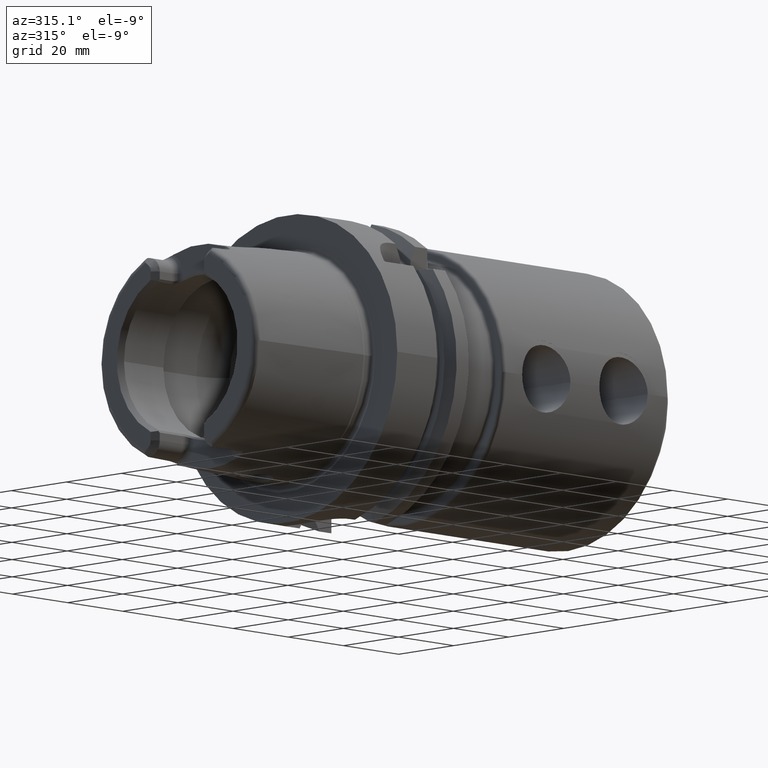
[diagram: clean part render]
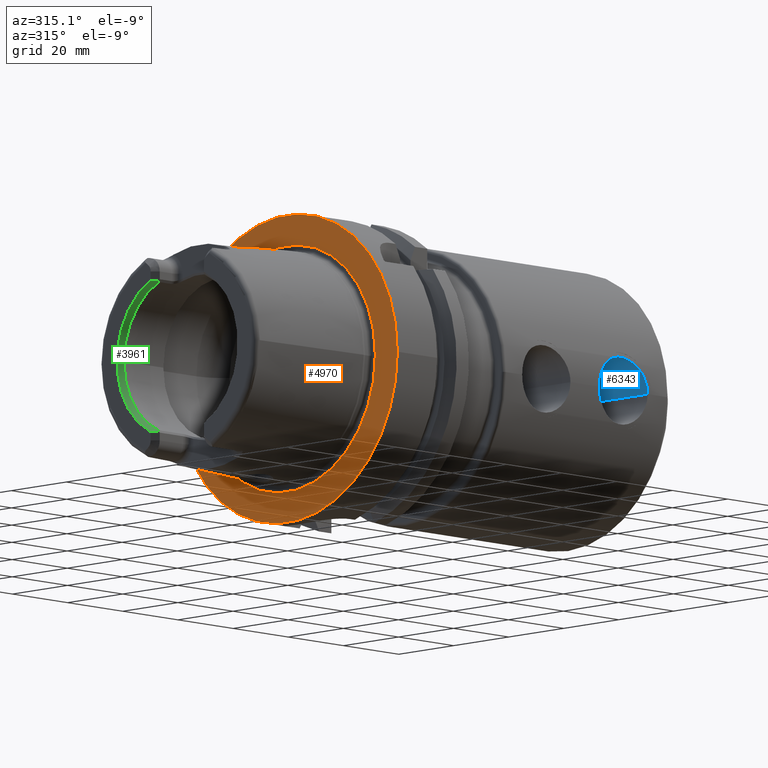
[diagram: same view with three faces highlighted in distinct colors, each labeled with its STEP entity id]
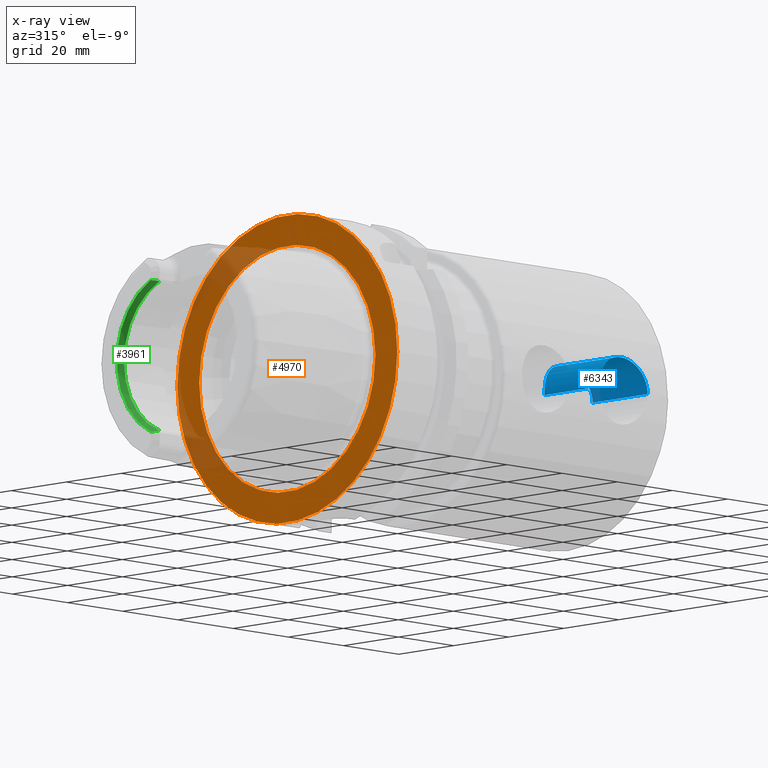
[diagram: x-ray of the same camera — body ghosted, the three highlighted faces saturated]
A machine part, auxiliary view with three faces highlighted in distinct colors.
The next image is the same camera in x-ray (body ghosted, the three faces saturated) — at least one of them is partly hidden behind the body in this view.
Their STEP definitions:

[orange] entity #4970 — the highlighted planar face has unit normal (1, 0, 0).
#1092=CARTESIAN_POINT('',(2.842170943040E-14,0.E0,0.E0));
#1093=DIRECTION('',(1.E0,0.E0,0.E0));
#1094=DIRECTION('',(0.E0,1.E0,0.E0));
#1095=AXIS2_PLACEMENT_3D('',#1092,#1093,#1094);
#1097=CARTESIAN_POINT('',(2.842170943040E-14,0.E0,0.E0));
#1098=DIRECTION('',(-1.E0,0.E0,0.E0));
#1099=DIRECTION('',(0.E0,1.E0,0.E0));
#1100=AXIS2_PLACEMENT_3D('',#1097,#1098,#1099);
#1102=CARTESIAN_POINT('',(0.E0,0.E0,0.E0));
#1103=DIRECTION('',(-1.E0,0.E0,0.E0));
#1104=DIRECTION('',(0.E0,-1.E0,0.E0));
#1105=AXIS2_PLACEMENT_3D('',#1102,#1103,#1104);
#1107=CARTESIAN_POINT('',(0.E0,0.E0,0.E0));
#1108=DIRECTION('',(-1.E0,0.E0,0.E0));
#1109=DIRECTION('',(0.E0,1.E0,0.E0));
#1110=AXIS2_PLACEMENT_3D('',#1107,#1108,#1109);
#3183=CARTESIAN_POINT('',(0.E0,-3.203155E1,0.E0));
#3184=VERTEX_POINT('',#3183);
#3185=CARTESIAN_POINT('',(0.E0,3.203155E1,0.E0));
#3186=VERTEX_POINT('',#3185);
#3503=CARTESIAN_POINT('',(2.842170943040E-14,4.E1,0.E0));
#3504=CARTESIAN_POINT('',(2.842170943040E-14,-4.E1,0.E0));
#3505=VERTEX_POINT('',#3503);
#3506=VERTEX_POINT('',#3504);
#4955=CARTESIAN_POINT('',(0.E0,0.E0,0.E0));
#4956=DIRECTION('',(1.E0,0.E0,0.E0));
#4957=DIRECTION('',(0.E0,-1.E0,0.E0));
#4958=AXIS2_PLACEMENT_3D('',#4955,#4956,#4957);
#4959=PLANE('',#4958);
#4961=ORIENTED_EDGE('',*,*,#4960,.T.);
#4963=ORIENTED_EDGE('',*,*,#4962,.F.);
#4964=EDGE_LOOP('',(#4961,#4963));
#4965=FACE_OUTER_BOUND('',#4964,.F.);
#4966=ORIENTED_EDGE('',*,*,#4950,.T.);
#4967=ORIENTED_EDGE('',*,*,#4934,.T.);
#4968=EDGE_LOOP('',(#4966,#4967));
#4969=FACE_BOUND('',#4968,.F.);
#4970=ADVANCED_FACE('',(#4965,#4969),#4959,.F.);
#1096=CIRCLE('',#1095,4.E1);
#1101=CIRCLE('',#1100,4.E1);
#1106=CIRCLE('',#1105,3.203155E1);
#1111=CIRCLE('',#1110,3.203155E1);
#4934=EDGE_CURVE('',#3186,#3184,#1111,.T.);
#4950=EDGE_CURVE('',#3184,#3186,#1106,.T.);
#4960=EDGE_CURVE('',#3505,#3506,#1096,.T.);
#4962=EDGE_CURVE('',#3505,#3506,#1101,.T.);

[blue] entity #6343 — the highlighted cylindrical surface (edge-blend (fillet) strip) has radius 8.75 mm, axis along (0, -1, 0).
#2278=CARTESIAN_POINT('',(7.725E1,-3.6E1,0.E0));
#2279=CARTESIAN_POINT('',(7.725E1,-3.6E1,3.361054621332E-1));
#2280=CARTESIAN_POINT('',(7.728835804071E1,-3.599064637655E1,1.004750139930E0));
#2281=CARTESIAN_POINT('',(7.746265808428E1,-3.594868120777E1,2.004606877954E0));
#2282=CARTESIAN_POINT('',(7.775053239807E1,-3.588110945656E1,2.975535526181E0));
#2283=CARTESIAN_POINT('',(7.815313076347E1,-3.579030094067E1,3.916270424965E0));
#2284=CARTESIAN_POINT('',(7.866174217942E1,-3.568174141267E1,4.802513162756E0));
#2285=CARTESIAN_POINT('',(7.927732528928E1,-3.555968829825E1,5.632282335302E0));
#2286=CARTESIAN_POINT('',(7.998309369804E1,-3.543245120442E1,6.380677412770E0));
#2287=CARTESIAN_POINT('',(8.077537937816E1,-3.530595486342E1,7.044163743405E0));
#2288=CARTESIAN_POINT('',(8.163495059655E1,-3.518852114365E1,7.606445746844E0));
#2289=CARTESIAN_POINT('',(8.255039222691E1,-3.508625634478E1,8.062918072509E0));
#2290=CARTESIAN_POINT('',(8.350930124954E1,-3.500468069581E1,8.408380486045E0));
#2291=CARTESIAN_POINT('',(8.449241768024E1,-3.494824259264E1,8.638876062325E0));
#2292=CARTESIAN_POINT('',(8.549787662176E1,-3.491922298367E1,8.754900427041E0));
#2293=CARTESIAN_POINT('',(8.650185277743E1,-3.491921767674E1,8.754921846143E0));
#2294=CARTESIAN_POINT('',(8.750741398681E1,-3.494823663507E1,8.638899272882E0));
#2295=CARTESIAN_POINT('',(8.849032420775E1,-3.500465310925E1,8.408496236048E0));
#2296=CARTESIAN_POINT('',(8.944951637569E1,-3.508624779297E1,8.062952891322E0));
#2297=CARTESIAN_POINT('',(9.036462489934E1,-3.518846868769E1,7.606689075677E0));
#2298=CARTESIAN_POINT('',(9.122453994800E1,-3.530594177896E1,7.044228929457E0));
#2299=CARTESIAN_POINT('',(9.201662241274E1,-3.543240375286E1,6.380938263634E0));
#2300=CARTESIAN_POINT('',(9.272256322310E1,-3.555966626965E1,5.632425501345E0));
#2301=CARTESIAN_POINT('',(9.333810958029E1,-3.568171134359E1,4.802727874391E0));
#2302=CARTESIAN_POINT('',(9.384673759951E1,-3.579027170584E1,3.916545312892E0));
#2303=CARTESIAN_POINT('',(9.424942380936E1,-3.588109926211E1,2.975661095786E0));
#2304=CARTESIAN_POINT('',(9.453729869316E1,-3.594867092277E1,2.004799506414E0));
#2305=CARTESIAN_POINT('',(9.471164800491E1,-3.599064779251E1,1.004751264481E0));
#2306=CARTESIAN_POINT('',(9.475E1,-3.6E1,3.361017280985E-1));
#2307=CARTESIAN_POINT('',(9.475E1,-3.6E1,0.E0));
#2446=CARTESIAN_POINT('',(9.475E1,-1.6E1,0.E0));
#2447=CARTESIAN_POINT('',(9.475E1,-1.6E1,3.000842751811E-1));
#2448=CARTESIAN_POINT('',(9.471938209847E1,-1.598322195615E1,
9.020498595693E-1));
#2449=CARTESIAN_POINT('',(9.457643610076E1,-1.590548897874E1,1.814643456424E0));
#2450=CARTESIAN_POINT('',(9.433662588852E1,-1.577710354727E1,2.712296411219E0));
#2451=CARTESIAN_POINT('',(9.399488990321E1,-1.559867373288E1,3.598406052942E0));
#2452=CARTESIAN_POINT('',(9.355345612228E1,-1.537633132173E1,4.452080463036E0));
#2453=CARTESIAN_POINT('',(9.300905306807E1,-1.511528580773E1,5.269169566202E0));
#2454=CARTESIAN_POINT('',(9.236352830091E1,-1.482575235312E1,6.033549283962E0));
#2455=CARTESIAN_POINT('',(9.163105804143E1,-1.452505712283E1,6.722525314331E0));
#2456=CARTESIAN_POINT('',(9.082242346613E1,-1.422977915327E1,7.324001554460E0));
#2457=CARTESIAN_POINT('',(8.996653006836E1,-1.396206174994E1,7.819522030196E0));
#2458=CARTESIAN_POINT('',(8.909042846671E1,-1.373837748725E1,8.204004808408E0));
#2459=CARTESIAN_POINT('',(8.820920595928E1,-1.356707525539E1,8.482815298766E0));
#2460=CARTESIAN_POINT('',(8.732557589955E1,-1.345120911042E1,8.664463765609E0));
#2461=CARTESIAN_POINT('',(8.643911373456E1,-1.339294706423E1,8.753814791541E0));
#2462=CARTESIAN_POINT('',(8.555992997212E1,-1.339298336362E1,8.753759148660E0));
#2463=CARTESIAN_POINT('',(8.467361638744E1,-1.345128403136E1,8.664348774146E0));
#2464=CARTESIAN_POINT('',(8.378960017456E1,-1.356726916521E1,8.482506210750E0));
#2465=CARTESIAN_POINT('',(8.290872571893E1,-1.373857314181E1,8.203678497350E0));
#2466=CARTESIAN_POINT('',(8.203260255483E1,-1.396230900928E1,7.819081243057E0));
#2467=CARTESIAN_POINT('',(8.117685953704E1,-1.423002228451E1,7.323534097235E0));
#2468=CARTESIAN_POINT('',(8.036804176322E1,-1.452540535319E1,6.721780956131E0));
#2469=CARTESIAN_POINT('',(7.963577675498E1,-1.482605524835E1,6.032795142149E0));
#2470=CARTESIAN_POINT('',(7.899050888618E1,-1.511548981133E1,5.268587606699E0));
#2471=CARTESIAN_POINT('',(7.844610890613E1,-1.537654610076E1,4.451331140454E0));
#2472=CARTESIAN_POINT('',(7.800495703300E1,-1.559875358989E1,3.598033684780E0));
#2473=CARTESIAN_POINT('',(7.766327179255E1,-1.577715758102E1,2.711982453070E0));
#2474=CARTESIAN_POINT('',(7.742352412186E1,-1.590551066646E1,1.814423309953E0));
#2475=CARTESIAN_POINT('',(7.728061868048E1,-1.598322152714E1,
9.020130686701E-1));
#2476=CARTESIAN_POINT('',(7.725E1,-1.6E1,3.000789821525E-1));
#2477=CARTESIAN_POINT('',(7.725E1,-1.6E1,0.E0));
#2579=DIRECTION('',(0.E0,-1.E0,0.E0));
#2580=VECTOR('',#2579,2.E1);
#2581=CARTESIAN_POINT('',(7.725E1,-1.6E1,0.E0));
#2582=LINE('',#2581,#2580);
#2583=DIRECTION('',(0.E0,-1.E0,0.E0));
#2584=VECTOR('',#2583,2.E1);
#2585=CARTESIAN_POINT('',(9.475E1,-1.6E1,0.E0));
#2586=LINE('',#2585,#2584);
#3611=CARTESIAN_POINT('',(7.725E1,-1.6E1,0.E0));
#3612=CARTESIAN_POINT('',(7.725E1,-3.6E1,0.E0));
#3613=VERTEX_POINT('',#3611);
#3614=VERTEX_POINT('',#3612);
#3615=CARTESIAN_POINT('',(9.475E1,-1.6E1,0.E0));
#3616=CARTESIAN_POINT('',(9.475E1,-3.6E1,0.E0));
#3617=VERTEX_POINT('',#3615);
#3618=VERTEX_POINT('',#3616);
#6332=CARTESIAN_POINT('',(8.6E1,7.320406937316E0,0.E0));
#6333=DIRECTION('',(0.E0,-1.E0,0.E0));
#6334=DIRECTION('',(-1.E0,0.E0,0.E0));
#6335=AXIS2_PLACEMENT_3D('',#6332,#6333,#6334);
#6336=CYLINDRICAL_SURFACE('',#6335,8.75E0);
#6337=ORIENTED_EDGE('',*,*,#6323,.T.);
#6338=ORIENTED_EDGE('',*,*,#6119,.T.);
#6339=ORIENTED_EDGE('',*,*,#6326,.F.);
#6340=ORIENTED_EDGE('',*,*,#6249,.T.);
#6341=EDGE_LOOP('',(#6337,#6338,#6339,#6340));
#6342=FACE_OUTER_BOUND('',#6341,.F.);
#6343=ADVANCED_FACE('',(#6342),#6336,.F.);
#2308=B_SPLINE_CURVE_WITH_KNOTS('',3,(#2278,#2279,#2280,#2281,#2282,#2283,#2284,
#2285,#2286,#2287,#2288,#2289,#2290,#2291,#2292,#2293,#2294,#2295,#2296,#2297,
#2298,#2299,#2300,#2301,#2302,#2303,#2304,#2305,#2306,#2307),.UNSPECIFIED.,.F.,
.F.,(4,1,1,1,1,1,1,1,1,1,1,1,1,1,1,1,1,1,1,1,1,1,1,1,1,1,1,4),(0.E0,
3.703703703704E-2,7.407407407407E-2,1.111111111111E-1,1.481481481481E-1,
1.851851851852E-1,2.222222222222E-1,2.592592592593E-1,2.962962962963E-1,
3.333333333333E-1,3.703703703704E-1,4.074074074074E-1,4.444444444444E-1,
4.814814814815E-1,5.185185185185E-1,5.555555555556E-1,5.925925925926E-1,
6.296296296296E-1,6.666666666667E-1,7.037037037037E-1,7.407407407407E-1,
7.777777777778E-1,8.148148148148E-1,8.518518518519E-1,8.888888888889E-1,
9.259259259259E-1,9.629629629630E-1,1.E0),.UNSPECIFIED.);
#2478=B_SPLINE_CURVE_WITH_KNOTS('',3,(#2446,#2447,#2448,#2449,#2450,#2451,#2452,
#2453,#2454,#2455,#2456,#2457,#2458,#2459,#2460,#2461,#2462,#2463,#2464,#2465,
#2466,#2467,#2468,#2469,#2470,#2471,#2472,#2473,#2474,#2475,#2476,#2477),
.UNSPECIFIED.,.F.,.F.,(4,1,1,1,1,1,1,1,1,1,1,1,1,1,1,1,1,1,1,1,1,1,1,1,1,1,1,1,
1,4),(0.E0,3.448275862069E-2,6.896551724138E-2,1.034482758621E-1,
1.379310344828E-1,1.724137931034E-1,2.068965517241E-1,2.413793103448E-1,
2.758620689655E-1,3.103448275862E-1,3.448275862069E-1,3.793103448276E-1,
4.137931034483E-1,4.482758620690E-1,4.827586206897E-1,5.172413793103E-1,
5.517241379310E-1,5.862068965517E-1,6.206896551724E-1,6.551724137931E-1,
6.896551724138E-1,7.241379310345E-1,7.586206896552E-1,7.931034482759E-1,
8.275862068966E-1,8.620689655172E-1,8.965517241379E-1,9.310344827586E-1,
9.655172413793E-1,1.E0),.UNSPECIFIED.);
#6119=EDGE_CURVE('',#3614,#3618,#2308,.T.);
#6249=EDGE_CURVE('',#3617,#3613,#2478,.T.);
#6323=EDGE_CURVE('',#3613,#3614,#2582,.T.);
#6326=EDGE_CURVE('',#3617,#3618,#2586,.T.);

[green] entity #3961 — the highlighted conical surface has half-angle 30 deg.
#352=CARTESIAN_POINT('',(-3.850782933789E1,8.277829337893E0,-1.948870947962E1));
#353=CARTESIAN_POINT('',(-3.897087624379E1,8.740876243785E0,-1.958248692083E1));
#354=CARTESIAN_POINT('',(-3.943494145022E1,9.204941450223E0,-1.966480263250E1));
#355=CARTESIAN_POINT('',(-3.99E1,9.67E0,-1.973593752655E1));
#357=CARTESIAN_POINT('',(-3.99E1,0.E0,0.E0));
#358=DIRECTION('',(1.E0,0.E0,0.E0));
#359=DIRECTION('',(0.E0,4.399928884304E-1,-8.980012573102E-1));
#360=AXIS2_PLACEMENT_3D('',#357,#358,#359);
#362=CARTESIAN_POINT('',(-3.99E1,9.67E0,1.973593752655E1));
#363=CARTESIAN_POINT('',(-3.943494145022E1,9.204941450223E0,1.966480263250E1));
#364=CARTESIAN_POINT('',(-3.897087624379E1,8.740876243785E0,1.958248692083E1));
#365=CARTESIAN_POINT('',(-3.850782933789E1,8.277829337893E0,1.948870947962E1));
#367=CARTESIAN_POINT('',(-3.825E1,8.402323491535E0,1.927307928027E1));
#368=CARTESIAN_POINT('',(-3.829242480142E1,8.381707263436E0,1.930878763480E1));
#369=CARTESIAN_POINT('',(-3.837782039200E1,8.340341616287E0,1.938043503735E1));
#370=CARTESIAN_POINT('',(-3.846431027355E1,8.298710771117E0,1.945254177635E1));
#371=CARTESIAN_POINT('',(-3.850782933789E1,8.277829337893E0,1.948870947962E1));
#373=CARTESIAN_POINT('',(-3.825E1,0.E0,0.E0));
#374=DIRECTION('',(1.E0,0.E0,0.E0));
#375=DIRECTION('',(0.E0,1.E0,0.E0));
#376=AXIS2_PLACEMENT_3D('',#373,#374,#375);
#378=CARTESIAN_POINT('',(-3.825E1,0.E0,0.E0));
#379=DIRECTION('',(-1.E0,0.E0,0.E0));
#380=DIRECTION('',(0.E0,1.E0,0.E0));
#381=AXIS2_PLACEMENT_3D('',#378,#379,#380);
#383=CARTESIAN_POINT('',(-3.850782933789E1,8.277829337893E0,-1.948870947962E1));
#384=CARTESIAN_POINT('',(-3.846430784178E1,8.298711937938E0,-1.945253975535E1));
#385=CARTESIAN_POINT('',(-3.837781554310E1,8.340343957585E0,-1.938043098210E1));
#386=CARTESIAN_POINT('',(-3.829242238448E1,8.381708437939E0,-1.930878560050E1));
#387=CARTESIAN_POINT('',(-3.825E1,8.402323491535E0,-1.927307928027E1));
#3280=CARTESIAN_POINT('',(-3.99E1,9.67E0,1.973593752655E1));
#3282=VERTEX_POINT('',#3280);
#3296=CARTESIAN_POINT('',(-3.850782933789E1,8.277829337893E0,1.948870947962E1));
#3297=VERTEX_POINT('',#3296);
#3311=CARTESIAN_POINT('',(-3.99E1,9.67E0,-1.973593752655E1));
#3313=VERTEX_POINT('',#3311);
#3325=CARTESIAN_POINT('',(-3.850782933789E1,8.277829337893E0,
-1.948870947962E1));
#3326=VERTEX_POINT('',#3325);
#3521=CARTESIAN_POINT('',(-3.825E1,2.1025E1,0.E0));
#3522=VERTEX_POINT('',#3521);
#3535=CARTESIAN_POINT('',(-3.825E1,8.402323491535E0,1.927307928027E1));
#3536=VERTEX_POINT('',#3535);
#3541=CARTESIAN_POINT('',(-3.825E1,8.402323491535E0,-1.927307928027E1));
#3542=VERTEX_POINT('',#3541);
#3942=CARTESIAN_POINT('',(-3.9075E1,0.E0,0.E0));
#3943=DIRECTION('',(-1.E0,0.E0,0.E0));
#3944=DIRECTION('',(0.E0,1.E0,0.E0));
#3945=AXIS2_PLACEMENT_3D('',#3942,#3943,#3944);
#3946=CONICAL_SURFACE('',#3945,2.150131397208E1,3.E1);
#3947=ORIENTED_EDGE('',*,*,#3931,.T.);
#3948=ORIENTED_EDGE('',*,*,#3897,.T.);
#3950=ORIENTED_EDGE('',*,*,#3949,.T.);
#3952=ORIENTED_EDGE('',*,*,#3951,.F.);
#3954=ORIENTED_EDGE('',*,*,#3953,.F.);
#3956=ORIENTED_EDGE('',*,*,#3955,.T.);
#3958=ORIENTED_EDGE('',*,*,#3957,.F.);
#3959=EDGE_LOOP('',(#3947,#3948,#3950,#3952,#3954,#3956,#3958));
#3960=FACE_OUTER_BOUND('',#3959,.F.);
#3961=ADVANCED_FACE('',(#3960),#3946,.F.);
#356=B_SPLINE_CURVE_WITH_KNOTS('',3,(#352,#353,#354,#355),.UNSPECIFIED.,.F.,.F.,
(4,4),(0.E0,1.E0),.UNSPECIFIED.);
#361=CIRCLE('',#360,2.197762794416E1);
#366=B_SPLINE_CURVE_WITH_KNOTS('',3,(#362,#363,#364,#365),.UNSPECIFIED.,.F.,.F.,
(4,4),(0.E0,1.E0),.UNSPECIFIED.);
#372=B_SPLINE_CURVE_WITH_KNOTS('',3,(#367,#368,#369,#370,#371),.UNSPECIFIED.,
.F.,.F.,(4,1,4),(0.E0,5.E-1,1.E0),.UNSPECIFIED.);
#377=CIRCLE('',#376,2.1025E1);
#382=CIRCLE('',#381,2.1025E1);
#388=B_SPLINE_CURVE_WITH_KNOTS('',3,(#383,#384,#385,#386,#387),.UNSPECIFIED.,
.F.,.F.,(4,1,4),(0.E0,5.E-1,1.E0),.UNSPECIFIED.);
#3897=EDGE_CURVE('',#3313,#3282,#361,.T.);
#3931=EDGE_CURVE('',#3326,#3313,#356,.T.);
#3949=EDGE_CURVE('',#3282,#3297,#366,.T.);
#3951=EDGE_CURVE('',#3536,#3297,#372,.T.);
#3953=EDGE_CURVE('',#3522,#3536,#377,.T.);
#3955=EDGE_CURVE('',#3522,#3542,#382,.T.);
#3957=EDGE_CURVE('',#3326,#3542,#388,.T.);